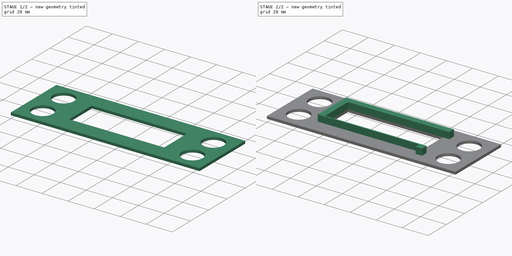
[diagram: build sequence overview — one tinted view per stage of 2, left to right]
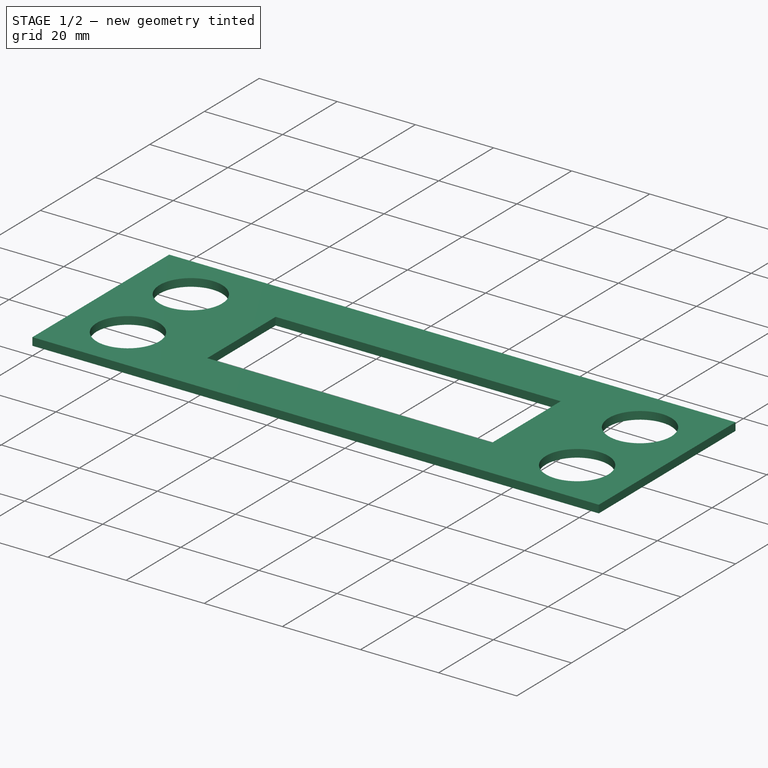
[diagram: stage 1 of 2 — iso view after this stage's code; geometry added in this stage tinted green]
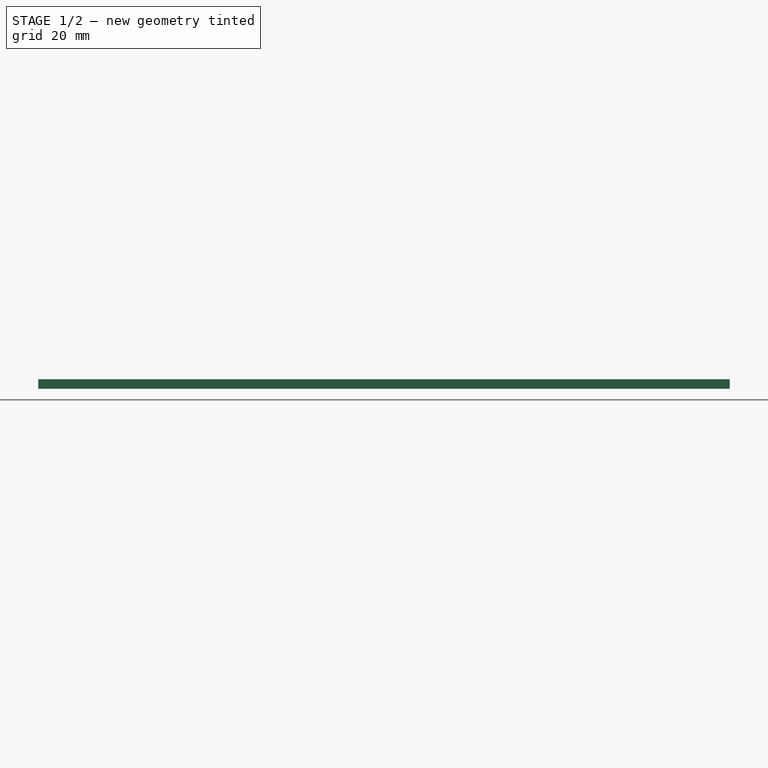
[diagram: stage 1 of 2 — front view after this stage's code; geometry added in this stage tinted green]
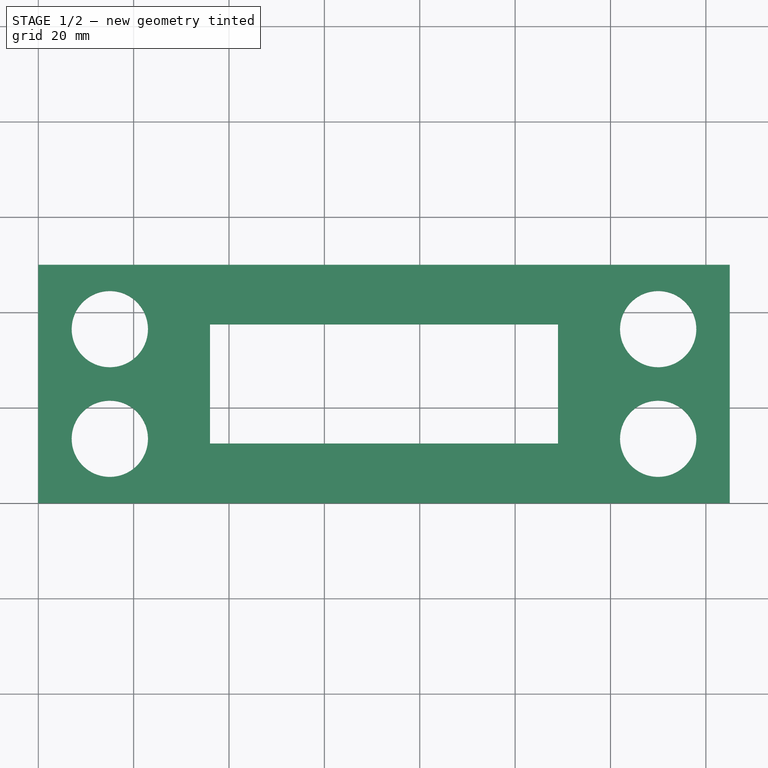
[diagram: stage 1 of 2 — top view after this stage's code; geometry added in this stage tinted green]
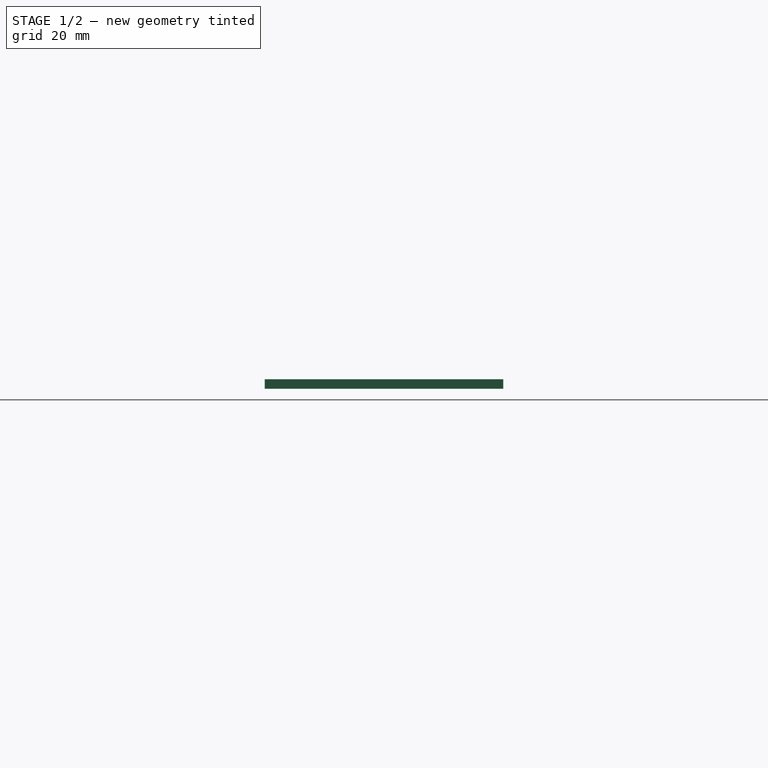
[diagram: stage 1 of 2 — right view after this stage's code; geometry added in this stage tinted green]
FCSTD DOCUMENT  (FreeCAD 0.21R33668 +26 (Git))
Label: Stopuhr-V02
License: All rights reserved
LicenseURL: https://en.wikipedia.org/wiki/All_rights_reserved
objects: Sketcher::SketchObject×2, PartDesign::Pad×2, PartDesign::Body×1
note: 7 computed .brp shape members not serialized (recipe doc carries the construction recipe); baked Part::Feature solids carry a one-line shape summary decoded from their .brp

FEATURE [Sketcher::SketchObject] Sketch
  FullyConstrained = true
  MapMode = 5
  Support = -> [XY_Plane]
  sketch-geometry (23):
    g0: LineSegment StartX=0 StartY=0 StartZ=0 EndX=145 EndY=0 EndZ=0
    g1: LineSegment StartX=145 StartY=0 StartZ=0 EndX=145 EndY=50 EndZ=0
    g2: LineSegment StartX=145 StartY=50 StartZ=0 EndX=0 EndY=50 EndZ=0
    g3: LineSegment StartX=0 StartY=50 StartZ=0 EndX=0 EndY=0 EndZ=0
    g4: LineSegment StartX=36 StartY=12.5 StartZ=0 EndX=109 EndY=12.5 EndZ=0
    g5: LineSegment StartX=109 StartY=12.5 StartZ=0 EndX=109 EndY=37.5 EndZ=0
    g6: LineSegment StartX=109 StartY=37.5 StartZ=0 EndX=36 EndY=37.5 EndZ=0
    g7: LineSegment StartX=36 StartY=37.5 StartZ=0 EndX=36 EndY=12.5 EndZ=0
    g8: LineSegment StartX=109 StartY=37.5 StartZ=0 EndX=145 EndY=37.5 EndZ=0
    g9: LineSegment StartX=36 StartY=37.5 StartZ=0 EndX=36 EndY=50 EndZ=0
    g10: LineSegment StartX=36 StartY=12.5 StartZ=0 EndX=36 EndY=0 EndZ=0
    g11: Circle CenterX=15 CenterY=13.5 CenterZ=0 NormalX=0 NormalY=0 NormalZ=1 AngleXU=0 Radius=8
    g12: Circle CenterX=15 CenterY=36.5 CenterZ=0 NormalX=0 NormalY=0 NormalZ=1 AngleXU=0 Radius=8
    g13: Circle CenterX=130 CenterY=13.5 CenterZ=0 NormalX=0 NormalY=0 NormalZ=1 AngleXU=0 Radius=8
    g14: LineSegment StartX=15 StartY=36.5 StartZ=0 EndX=15 EndY=13.5 EndZ=0
    g15: LineSegment StartX=130 StartY=36.5 StartZ=0 EndX=130 EndY=13.5 EndZ=0
    g16: Circle CenterX=130 CenterY=36.5 CenterZ=0 NormalX=0 NormalY=0 NormalZ=1 AngleXU=0 Radius=8
    g17: LineSegment StartX=15 StartY=36.5 StartZ=0 EndX=15 EndY=50 EndZ=0
    g18: LineSegment StartX=15 StartY=13.5 StartZ=0 EndX=15 EndY=0 EndZ=0
    g19: LineSegment StartX=15 StartY=13.5 StartZ=0 EndX=130 EndY=13.5 EndZ=0
    g20: LineSegment StartX=15 StartY=36.5 StartZ=0 EndX=0 EndY=36.5 EndZ=0
    g21: LineSegment StartX=130 StartY=36.5 StartZ=0 EndX=145 EndY=36.5 EndZ=0
    g22: LineSegment StartX=36 StartY=37.5 StartZ=0 EndX=0 EndY=37.5 EndZ=0
  constraints (65):
    c: Coincident(g0,g1)
    c: Coincident(g1,g2)
    c: Coincident(g2,g3)
    c: Coincident(g3,g0)
    c: Horizontal(g0)
    c: Horizontal(g2)
    c: Vertical(g1)
    c: Vertical(g3)
    c: Coincident(g0,g-1)
    c: DistanceY(g1,g1) = 50
    c: DistanceX(g2,g2) = 145
    c: Coincident(g4,g5)
    c: Coincident(g5,g6)
    c: Coincident(g6,g7)
    c: Coincident(g7,g4)
    c: Horizontal(g4)
    c: Horizontal(g6)
    c: Vertical(g5)
    c: Vertical(g7)
    c: DistanceY(g5,g5) = 25
    c: DistanceX(g6,g6) = 73
    c: Coincident(g8,g5)
    c: PointOnObject(g8,g1)
    c: Horizontal(g8)
    c: Coincident(g9,g6)
    c: PointOnObject(g9,g2)
    c: Vertical(g9)
    c: Coincident(g10,g4)
    c: PointOnObject(g10,g0)
    c: Vertical(g10)
    c: Equal(g9,g10)
    c: Radius(g11) = 8
    c: Equal(g12,g11)
    c: Coincident(g14,g12)
    c: Coincident(g14,g11)
    c: Coincident(g15,g13)
    c: Vertical(g15)
    c: Vertical(g14)
    c: Equal(g14,g15)
    c: Equal(g16,g11)
    c: Coincident(g16,g15)
    c: DistanceY(g14,g14) = 23
    c: Coincident(g17,g12)
    c: PointOnObject(g17,g2)
    c: Vertical(g17)
    c: Coincident(g18,g11)
    c: PointOnObject(g18,g0)
    c: Vertical(g18)
    c: Equal(g18,g17)
    c: Coincident(g19,g11)
    c: Coincident(g19,g13)
    c: Horizontal(g19)
    c: Equal(g13,g11)
    c: Coincident(g20,g12)
    c: PointOnObject(g20,g3)
    c: Horizontal(g20)
    c: Coincident(g21,g16)
    c: PointOnObject(g21,g1)
    c: Horizontal(g21)
    c: Equal(g21,g20)
    c: DistanceX(g20,g20) = 15
    c: Coincident(g22,g6)
    c: PointOnObject(g22,g3)
    c: Horizontal(g22)
    c: Equal(g8,g22)
FEATURE [PartDesign::Pad] Pad
  Direction = (0,0,1)
  Length = 2
  Length2 = 10
  Profile = -> Sketch
  ReferenceAxis = -> Sketch [N_Axis]
  Type = 0
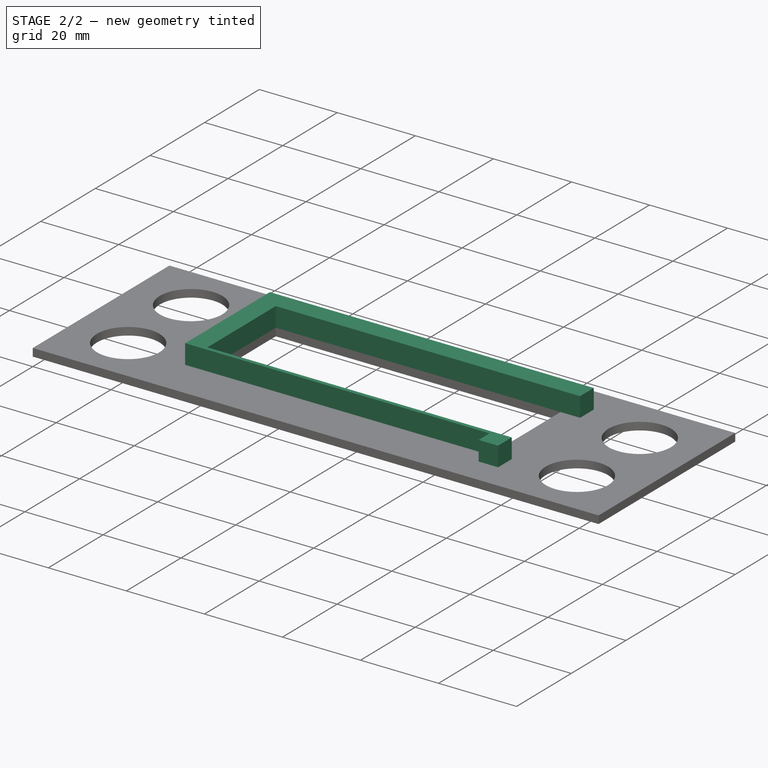
[diagram: stage 2 of 2 — iso view after this stage's code; geometry added in this stage tinted green]
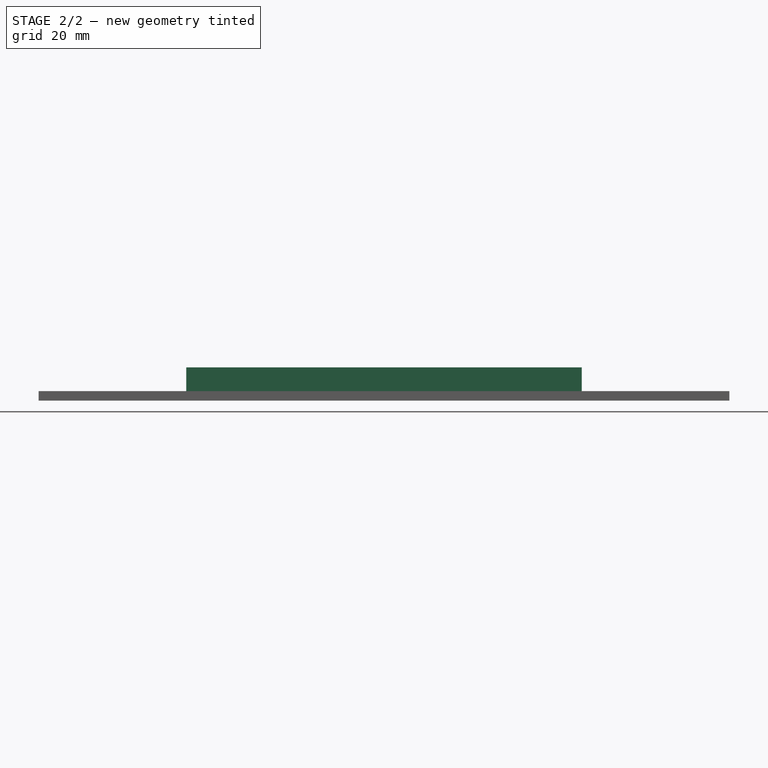
[diagram: stage 2 of 2 — front view after this stage's code; geometry added in this stage tinted green]
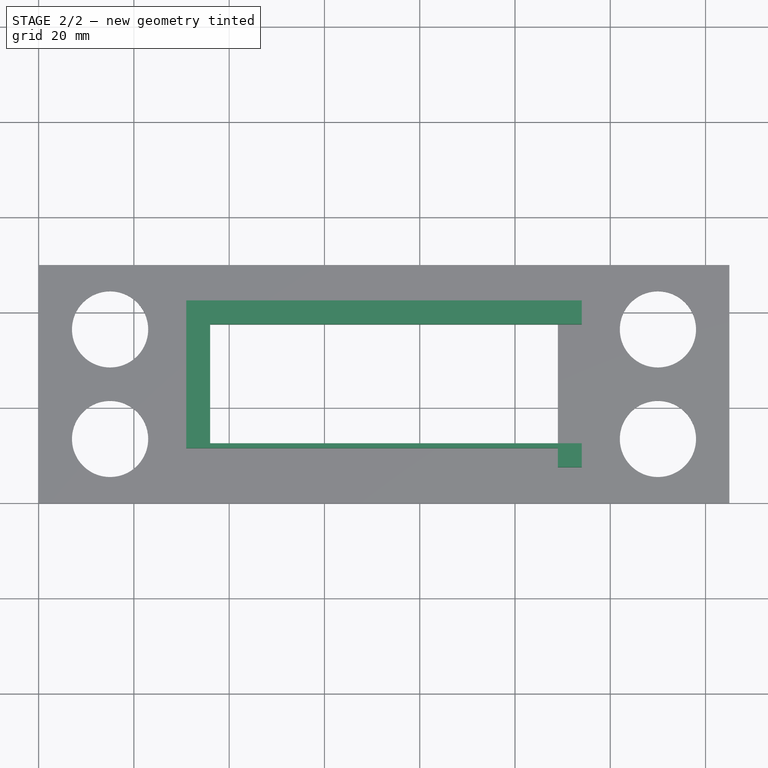
[diagram: stage 2 of 2 — top view after this stage's code; geometry added in this stage tinted green]
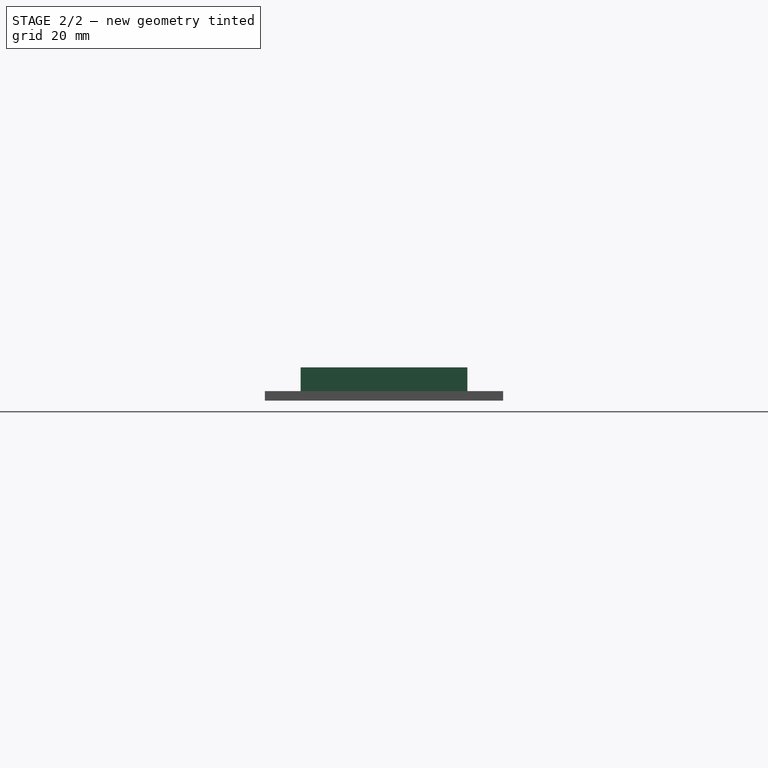
[diagram: stage 2 of 2 — right view after this stage's code; geometry added in this stage tinted green]
FEATURE [Sketcher::SketchObject] Sketch001
  ExternalGeometry = -> [Pad]
  FullyConstrained = true
  MapMode = 5
  Placement = pos=(0,0,2) rot=(0,0,1;0rad)
  Support = -> [Pad]
  sketch-geometry (13):
    g0: LineSegment StartX=36 StartY=12.5 StartZ=0 EndX=109 EndY=12.5 EndZ=0
    g1: LineSegment StartX=36 StartY=37.5 StartZ=0 EndX=109 EndY=37.5 EndZ=0
    g2: LineSegment StartX=109 StartY=42.5 StartZ=0 EndX=31 EndY=42.5 EndZ=0
    g3: LineSegment StartX=31 StartY=11.5 StartZ=0 EndX=31 EndY=42.5 EndZ=0
    g4: LineSegment StartX=36 StartY=37.5 StartZ=0 EndX=36 EndY=12.5 EndZ=0
    g5: LineSegment StartX=109 StartY=11.5 StartZ=0 EndX=31 EndY=11.5 EndZ=0
    g6: LineSegment StartX=109 StartY=12.5 StartZ=0 EndX=114 EndY=12.5 EndZ=0
    g7: LineSegment StartX=114 StartY=12.5 StartZ=0 EndX=114 EndY=7.5 EndZ=0
    g8: LineSegment StartX=114 StartY=7.5 StartZ=0 EndX=109 EndY=7.5 EndZ=0
    g9: LineSegment StartX=109 StartY=7.5 StartZ=0 EndX=109 EndY=11.5 EndZ=0
    g10: LineSegment StartX=109 StartY=42.5 StartZ=0 EndX=114 EndY=42.5 EndZ=0
    g11: LineSegment StartX=114 StartY=42.5 StartZ=0 EndX=114 EndY=37.5 EndZ=0
    g12: LineSegment StartX=114 StartY=37.5 StartZ=0 EndX=109 EndY=37.5 EndZ=0
  constraints (35):
    c: Horizontal(g2)
    c: Coincident(g1,g-3)
    c: Coincident(g-4,g1)
    c: Vertical(g3)
    c: DistanceX(g3,g4) = 5
    c: Coincident(g0,g-4)
    c: Horizontal(g5)
    c: Coincident(g3,g5)
    c: DistanceY(g5,g0) = 1
    c: DistanceY(g1,g2) = 5
    c: Coincident(g3,g2)
    c: Coincident(g1,g4)
    c: Coincident(g4,g0)
    c: Coincident(g0,g-3)
    c: Coincident(g6,g7)
    c: Coincident(g7,g8)
    c: Horizontal(g6)
    c: Horizontal(g8)
    c: Vertical(g7)
    c: Coincident(g6,g0)
    c: Coincident(g9,g8)
    c: Coincident(g9,g5)
    c: Vertical(g9)
    c: Equal(g8,g7)
    c: Equal(g6,g8)
    c: Coincident(g10,g11)
    c: Coincident(g11,g12)
    c: Horizontal(g10)
    c: Horizontal(g12)
    c: Vertical(g11)
    c: Coincident(g10,g2)
    c: Coincident(g12,g1)
    c: Equal(g10,g11)
    c: Equal(g11,g12)
    c: Equal(g7,g11)
FEATURE [PartDesign::Pad] Pad001
  BaseFeature = -> Pad
  Direction = (0,0,1)
  Length = 5
  Length2 = 10
  Profile = -> Sketch001
  ReferenceAxis = -> Sketch001 [N_Axis]
  Type = 0
FEATURE [PartDesign::Body] Body  label="Körper"
  Group = -> [Sketch,Pad,Sketch001,Pad001]
  Origin = -> Origin
  Tip = -> Pad001
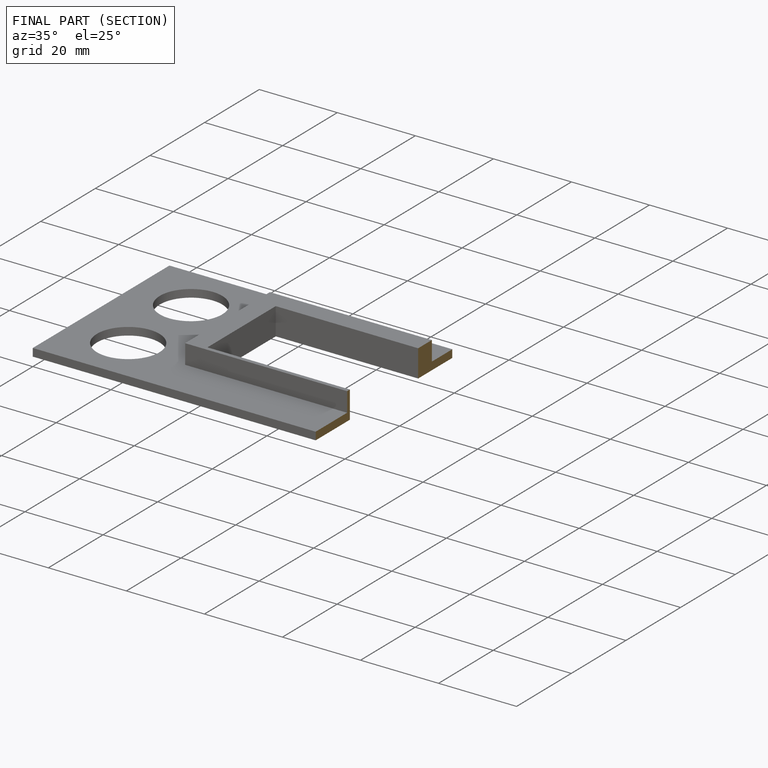
[diagram: finished part — half-section view (interior)]
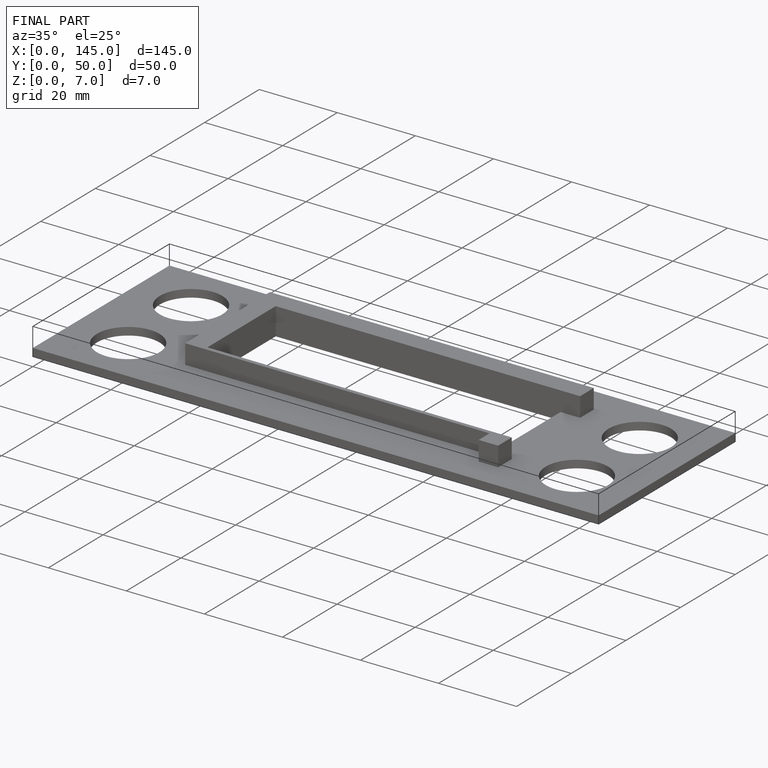
[diagram: finished part — iso view with bounding-box wireframe]
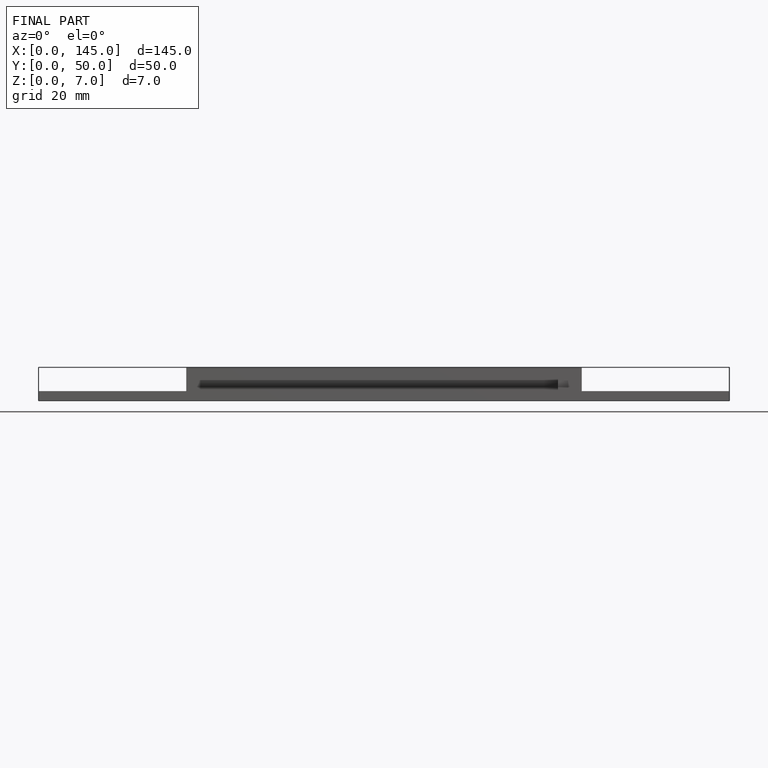
[diagram: finished part — front view with bounding-box wireframe]
